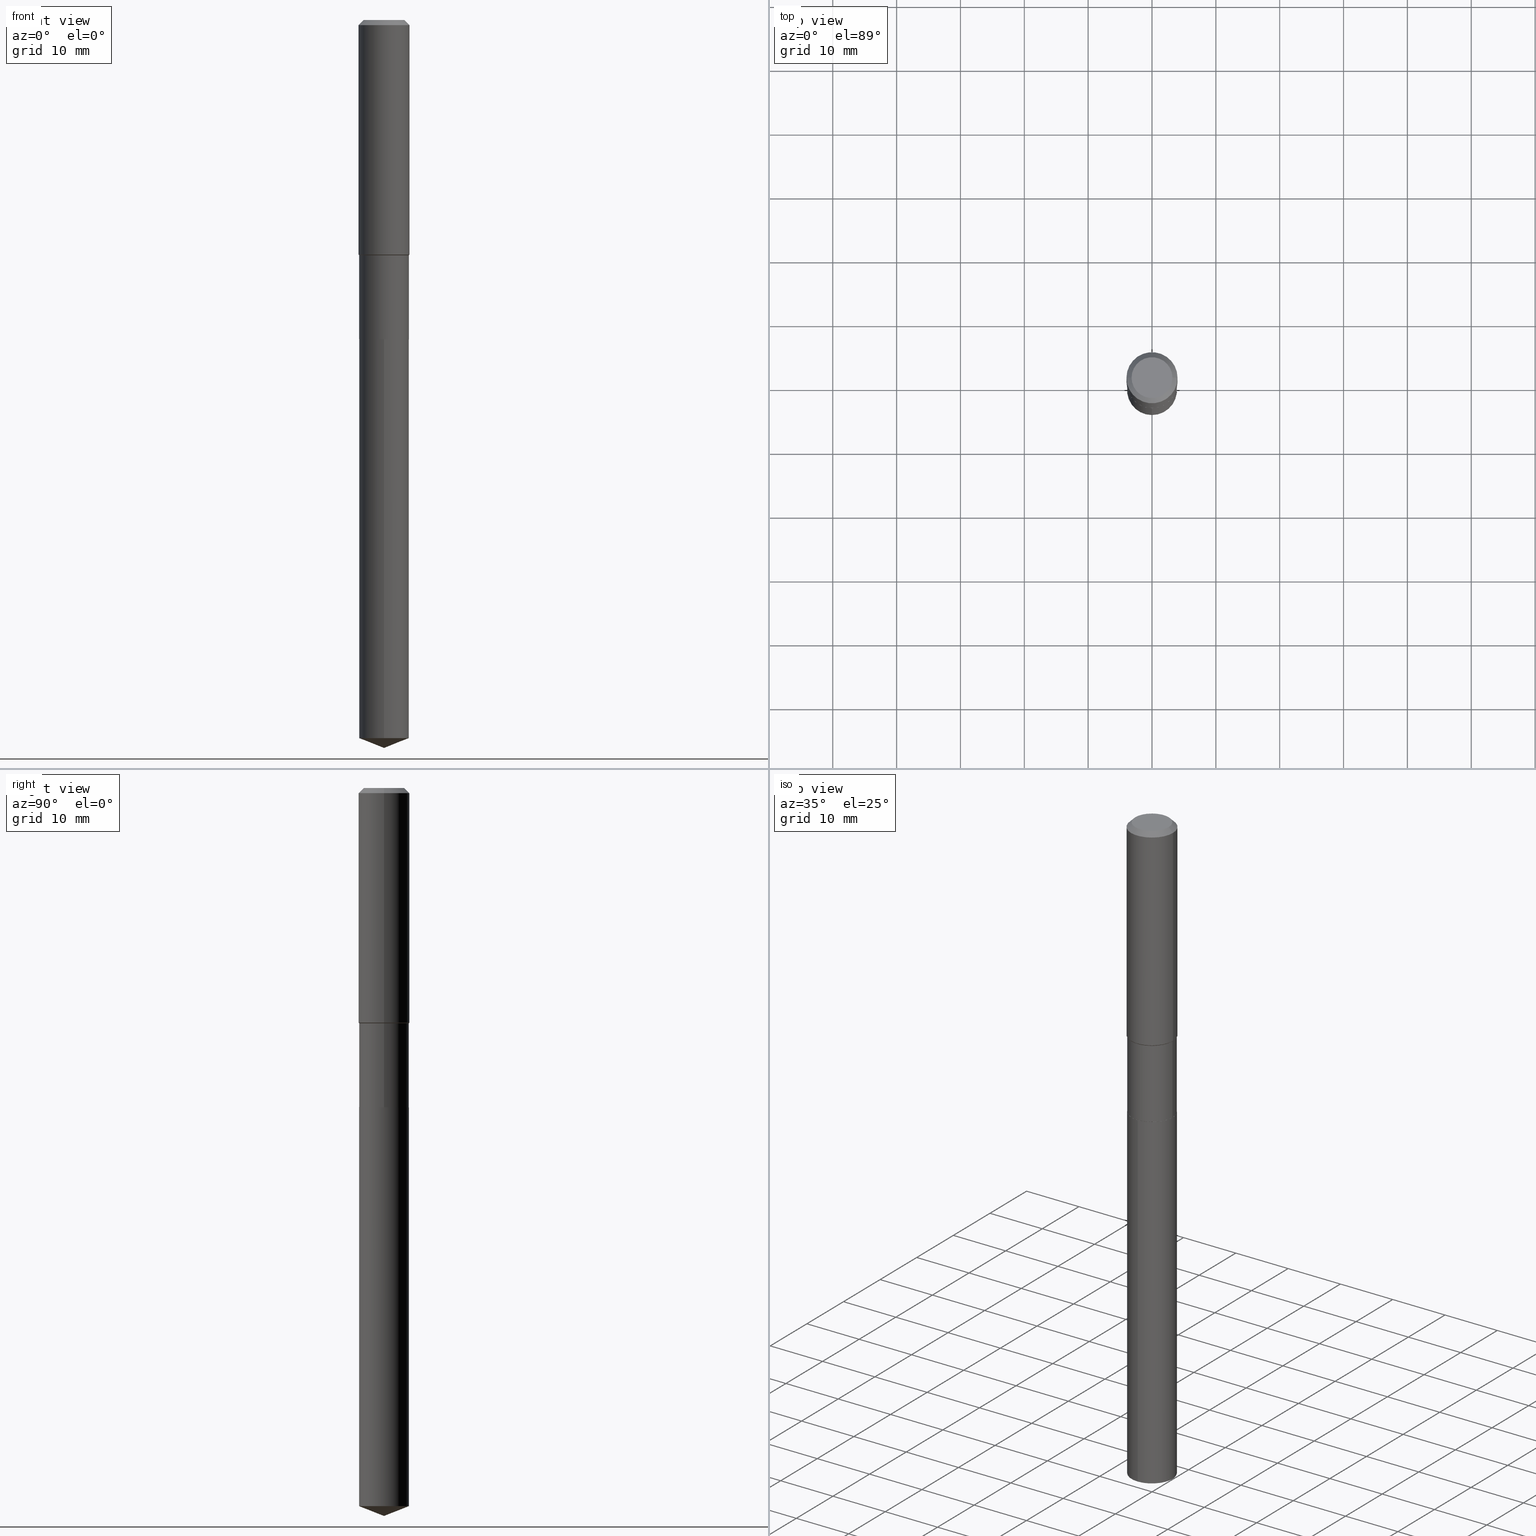
[diagram: canonical four-view strip — front | top / right | iso, engineering-drawing reading convention]
A machine part, canonical four-view strip (front | top / right | iso — engineering-drawing reading convention). The complete STEP part file that produces these views, byte-faithful:
ISO-10303-21;
HEADER;
FILE_DESCRIPTION (( 'STEP AP203' ),
    '1' );
FILE_NAME ('66654.STEP',
    '2024-04-25T02:57:42',
    ( '' ),
    ( '' ),
    'SwSTEP 2.0',
    'SolidWorks 2023',
    '' );
FILE_SCHEMA (( 'CONFIG_CONTROL_DESIGN' ));
ENDSEC;

DATA;
#1 = ADVANCED_FACE ( 'NONE', ( #355 ), #249, .F. ) ;
#2 = VERTEX_POINT ( 'NONE', #60 ) ;
#3 = DIRECTION ( 'NONE',  ( -2.445397477310179660E-29, 3.491583485851871163E-15, 1.000000000000000000 ) ) ;
#4 = VERTEX_POINT ( 'NONE', #211 ) ;
#5 = CARTESIAN_POINT ( 'NONE',  ( 7.703226739483226971E-31, -1.099816621735597538E-16, -0.03150000000000019451 ) ) ;
#6 = VECTOR ( 'NONE', #405, 39.37007874015748143 ) ;
#7 = PRODUCT_DEFINITION_FORMATION_WITH_SPECIFIED_SOURCE ( 'ANY', '', #437, .NOT_KNOWN. ) ;
#8 = ADVANCED_FACE ( 'NONE', ( #396 ), #429, .T. ) ;
#9 = LINE ( 'NONE', #450, #284 ) ;
#10 = CALENDAR_DATE ( 2024, 24, 4 ) ;
#11 = PLANE ( 'NONE',  #433 ) ;
#12 = CLOSED_SHELL ( 'NONE', ( #179, #321, #189, #441, #218 ) ) ;
#13 = LOCAL_TIME ( 22, 57, 42.00000000000000000, #131 ) ;
#14 = COORDINATED_UNIVERSAL_TIME_OFFSET ( 5, 0, .BEHIND. ) ;
#15 = LINE ( 'NONE', #238, #344 ) ;
#16 = ADVANCED_FACE ( 'NONE', ( #118 ), #275, .T. ) ;
#17 = SECURITY_CLASSIFICATION_LEVEL ( 'unclassified' ) ;
#18 = FACE_OUTER_BOUND ( 'NONE', #40, .T. ) ;
#19 =( NAMED_UNIT ( * ) SI_UNIT ( $, .STERADIAN. ) SOLID_ANGLE_UNIT ( ) );
#20 = CARTESIAN_POINT ( 'NONE',  ( 3.545929768968448850E-29, -5.062647941322561509E-15, -1.450000000000000178 ) ) ;
#21 = ORIENTED_EDGE ( 'NONE', *, *, #459, .T. ) ;
#22 = VECTOR ( 'NONE', #63, 39.37007874015748143 ) ;
#23 = EDGE_CURVE ( 'NONE', #257, #210, #463, .T. ) ;
#24 = FACE_OUTER_BOUND ( 'NONE', #255, .T. ) ;
#25 = DIRECTION ( 'NONE',  ( -1.000000000000000000, 6.982962677686265922E-15, 0.000000000000000000 ) ) ;
#26 = ORIENTED_EDGE ( 'NONE', *, *, #386, .T. ) ;
#27 = CARTESIAN_POINT ( 'NONE',  ( 7.703226739483226971E-31, -1.099816621735597538E-16, -0.03150000000000019451 ) ) ;
#28 = VECTOR ( 'NONE', #201, 39.37007874015748143 ) ;
#29 = VECTOR ( 'NONE', #490, 39.37007874015748143 ) ;
#30 = DIRECTION ( 'NONE',  ( -2.445468806185136597E-29, 3.491481338843145583E-15, 1.000000000000000000 ) ) ;
#31 = ADVANCED_FACE ( 'NONE', ( #128 ), #436, .T. ) ;
#32 = ORIENTED_EDGE ( 'NONE', *, *, #167, .T. ) ;
#33 = CARTESIAN_POINT ( 'NONE',  ( 1.097543295766354916E-28, -1.567092500120036717E-14, -4.488199999999999967 ) ) ;
#34 = ORIENTED_EDGE ( 'NONE', *, *, #59, .F. ) ;
#35 = CARTESIAN_POINT ( 'NONE',  ( 7.703226739483226971E-31, -1.099816621735597538E-16, -0.03150000000000019451 ) ) ;
#36 = ORIENTED_EDGE ( 'NONE', *, *, #250, .T. ) ;
#37 = ADVANCED_FACE ( 'NONE', ( #24 ), #352, .T. ) ;
#38 = DIRECTION ( 'NONE',  ( 1.000000000000000000, -6.982962677686265922E-15, 0.000000000000000000 ) ) ;
#39 = CIRCLE ( 'NONE', #345, 0.1535499999999999921 ) ;
#40 = EDGE_LOOP ( 'NONE', ( #142, #178 ) ) ;
#41 = LINE ( 'NONE', #415, #29 ) ;
#42 = ORIENTED_EDGE ( 'NONE', *, *, #266, .T. ) ;
#43 =( LENGTH_UNIT ( ) NAMED_UNIT ( * ) SI_UNIT ( $, .METRE. ) );
#44 = EDGE_CURVE ( 'NONE', #263, #480, #161, .T. ) ;
#45 = DIRECTION ( 'NONE',  ( -2.445468806185136597E-29, 3.491481338843145583E-15, 1.000000000000000000 ) ) ;
#46 = CIRCLE ( 'NONE', #241, 0.1575000000000001676 ) ;
#47 = CONICAL_SURFACE ( 'NONE', #322, 0.1575000000000000011, 0.7853981633974450594 ) ;
#48 = DATE_AND_TIME ( #460, #195 ) ;
#49 = DIRECTION ( 'NONE',  ( 0.000000000000000000, 0.000000000000000000, 1.000000000000000000 ) ) ;
#50 = DIRECTION ( 'NONE',  ( 1.000000000000000000, -6.982962677686266711E-15, 4.876176775795935793E-29 ) ) ;
#51 = DIRECTION ( 'NONE',  ( 1.000000000000000000, 0.000000000000000000, 0.000000000000000000 ) ) ;
#52 = APPROVAL ( #200, 'UNSPECIFIED' ) ;
#53 = FACE_OUTER_BOUND ( 'NONE', #112, .T. ) ;
#54 = CONICAL_SURFACE ( 'NONE', #154, 99.94676754583970535, 1.195550537616118625 ) ;
#55 = CYLINDRICAL_SURFACE ( 'NONE', #234, 0.1535499999999999643 ) ;
#56 = EDGE_LOOP ( 'NONE', ( #334, #268, #21, #187 ) ) ;
#57 = APPROVAL_STATUS ( 'not_yet_approved' ) ;
#58 = DIRECTION ( 'NONE',  ( -2.445468806185136597E-29, 3.491481338843145583E-15, 1.000000000000000000 ) ) ;
#59 = EDGE_CURVE ( 'NONE', #289, #373, #15, .T. ) ;
#60 = CARTESIAN_POINT ( 'NONE',  ( -0.1530499999999999916, -5.782846131257786245E-15, -1.968499999999999694 ) ) ;
#61 = ORIENTED_EDGE ( 'NONE', *, *, #122, .F. ) ;
#62 = DIRECTION ( 'NONE',  ( -2.445397477310179660E-29, 3.491583485851871163E-15, 1.000000000000000000 ) ) ;
#63 = DIRECTION ( 'NONE',  ( 6.611014441532064222E-15, 0.9304175679820269051, 0.3665012267242913624 ) ) ;
#64 = ORIENTED_EDGE ( 'NONE', *, *, #173, .T. ) ;
#65 = PLANE ( 'NONE',  #399 ) ;
#66 = APPROVAL ( #208, 'UNSPECIFIED' ) ;
#67 = ORIENTED_EDGE ( 'NONE', *, *, #350, .T. ) ;
#68 = CIRCLE ( 'NONE', #116, 0.1535499999999999921 ) ;
#69 = LINE ( 'NONE', #481, #22 ) ;
#70 = ORIENTED_EDGE ( 'NONE', *, *, #401, .F. ) ;
#71 = CARTESIAN_POINT ( 'NONE',  ( 4.813905344975440714E-29, -6.872981015512730918E-15, -1.968499999999999694 ) ) ;
#72 = ORIENTED_EDGE ( 'NONE', *, *, #259, .F. ) ;
#73 = ADVANCED_FACE ( 'NONE', ( #53 ), #407, .T. ) ;
#74 = DIRECTION ( 'NONE',  ( -2.445468806185136597E-29, 3.491481338843145583E-15, 1.000000000000000000 ) ) ;
#75 = ORIENTED_EDGE ( 'NONE', *, *, #315, .F. ) ;
#76 = AXIS2_PLACEMENT_3D ( 'NONE', #295, #30, #262 ) ;
#77 = DIRECTION ( 'NONE',  ( -2.445397477310179380E-29, 3.491583485851871163E-15, 1.000000000000000000 ) ) ;
#78 = ORIENTED_EDGE ( 'NONE', *, *, #475, .T. ) ;
#79 = DIRECTION ( 'NONE',  ( 1.000000000000000000, -6.982962677686267499E-15, 0.000000000000000000 ) ) ;
#80 = CARTESIAN_POINT ( 'NONE',  ( 0.1575000000000000844, -1.099816621735587677E-15, 7.679978421878603638E-30 ) ) ;
#81 = LINE ( 'NONE', #80, #418 ) ;
#82 = CIRCLE ( 'NONE', #276, 0.1575000000000000011 ) ;
#83 = SECURITY_CLASSIFICATION ( '', '', #17 ) ;
#84 = PERSON_AND_ORGANIZATION_ROLE ( 'creator' ) ;
#85 = DIRECTION ( 'NONE',  ( -2.445468806185136877E-29, 3.491481338843145188E-15, 1.000000000000000000 ) ) ;
#86 = ADVANCED_FACE ( 'NONE', ( #387 ), #55, .T. ) ;
#87 = DIRECTION ( 'NONE',  ( 1.000000000000000000, -6.982962677686265922E-15, 4.876176775795935793E-29 ) ) ;
#88 = CARTESIAN_POINT ( 'NONE',  ( 0.000000000000000000, 0.000000000000000000, 0.000000000000000000 ) ) ;
#89 = CLOSED_SHELL ( 'NONE', ( #301, #213, #127, #16, #31, #86, #73, #8, #37, #143, #1, #424 ) ) ;
#90 = DIRECTION ( 'NONE',  ( -6.982962677686266711E-15, -1.000000000000000000, 3.558252026915354491E-15 ) ) ;
#91 = EDGE_CURVE ( 'NONE', #263, #247, #46, .T. ) ;
#92 =( NAMED_UNIT ( * ) PLANE_ANGLE_UNIT ( ) SI_UNIT ( $, .RADIAN. ) );
#93 = CARTESIAN_POINT ( 'NONE',  ( 0.000000000000000000, 0.000000000000000000, 0.000000000000000000 ) ) ;
#94 = ORIENTED_EDGE ( 'NONE', *, *, #335, .T. ) ;
#95 = CARTESIAN_POINT ( 'NONE',  ( 0.1575000000000001676, -6.148673211769718717E-15, -1.446050000000000058 ) ) ;
#96 = AXIS2_PLACEMENT_3D ( 'NONE', #456, #397, #358 ) ;
#97 = ORGANIZATION ( 'UNSPECIFIED', 'UNSPECIFIED', '' ) ;
#98 =( GEOMETRIC_REPRESENTATION_CONTEXT ( 3 ) GLOBAL_UNCERTAINTY_ASSIGNED_CONTEXT ( ( #191 ) ) GLOBAL_UNIT_ASSIGNED_CONTEXT ( ( #272, #92, #19 ) ) REPRESENTATION_CONTEXT ( 'NONE', 'WORKASPACE' ) );
#99 = DIRECTION ( 'NONE',  ( -2.445468806185136597E-29, 3.491481338843145583E-15, 1.000000000000000000 ) ) ;
#100 = ORIENTED_EDGE ( 'NONE', *, *, #122, .T. ) ;
#101 = CC_DESIGN_PERSON_AND_ORGANIZATION_ASSIGNMENT ( #349, #438, ( #109 ) ) ;
#102 = DIRECTION ( 'NONE',  ( 1.000000000000000000, -6.982962677686265922E-15, 0.000000000000000000 ) ) ;
#103 = ORIENTED_EDGE ( 'NONE', *, *, #288, .F. ) ;
#104 = DIRECTION ( 'NONE',  ( 1.000000000000000000, -6.982962677686265922E-15, 4.876281427513067258E-29 ) ) ;
#105 = VERTEX_POINT ( 'NONE', #279 ) ;
#106 = VECTOR ( 'NONE', #85, 39.37007874015748143 ) ;
#107 = AXIS2_PLACEMENT_3D ( 'NONE', #274, #232, #229 ) ;
#108 = CARTESIAN_POINT ( 'NONE',  ( 1.091038370759742445E-15, 0.1535499999999931364, -1.968500000000000583 ) ) ;
#109 = PRODUCT_DEFINITION ( 'UNKNOWN', '', #7, #199 ) ;
#110 = ORIENTED_EDGE ( 'NONE', *, *, #59, .T. ) ;
#111 = DIRECTION ( 'NONE',  ( -2.445397477310179660E-29, 3.491583485851871163E-15, 1.000000000000000000 ) ) ;
#112 = EDGE_LOOP ( 'NONE', ( #61, #26, #94, #342 ) ) ;
#113 = CARTESIAN_POINT ( 'NONE',  ( 4.813905344975440714E-29, -6.872981015512730918E-15, -1.968499999999999694 ) ) ;
#114 = EDGE_LOOP ( 'NONE', ( #78, #67, #103, #139 ) ) ;
#115 = AXIS2_PLACEMENT_3D ( 'NONE', #171, #314, #87 ) ;
#116 = AXIS2_PLACEMENT_3D ( 'NONE', #341, #111, #300 ) ;
#117 = DIRECTION ( 'NONE',  ( -2.445468806185136597E-29, 3.491481338843145583E-15, 1.000000000000000000 ) ) ;
#118 = FACE_OUTER_BOUND ( 'NONE', #376, .T. ) ;
#119 = FACE_OUTER_BOUND ( 'NONE', #56, .T. ) ;
#120 = CALENDAR_DATE ( 2024, 24, 4 ) ;
#121 = CIRCLE ( 'NONE', #252, 0.1535499999999999365 ) ;
#122 = EDGE_CURVE ( 'NONE', #145, #263, #356, .T. ) ;
#123 = DIRECTION ( 'NONE',  ( -2.445468806185136597E-29, 3.491481338843145583E-15, 1.000000000000000000 ) ) ;
#124 = DIRECTION ( 'NONE',  ( -2.445468806185136597E-29, 3.491481338843145583E-15, 1.000000000000000000 ) ) ;
#125 = PRODUCT_DEFINITION_SHAPE ( 'NONE', 'NONE',  #109 ) ;
#126 = COORDINATED_UNIVERSAL_TIME_OFFSET ( 5, 0, .BEHIND. ) ;
#127 = ADVANCED_FACE ( 'NONE', ( #132 ), #287, .T. ) ;
#128 = FACE_OUTER_BOUND ( 'NONE', #489, .T. ) ;
#129 = CONICAL_SURFACE ( 'NONE', #307, 0.1530499999999999916, 0.7853981633978239785 ) ;
#130 = ORIENTED_EDGE ( 'NONE', *, *, #374, .F. ) ;
#131 = COORDINATED_UNIVERSAL_TIME_OFFSET ( 5, 0, .BEHIND. ) ;
#132 = FACE_OUTER_BOUND ( 'NONE', #302, .T. ) ;
#133 = ORIENTED_EDGE ( 'NONE', *, *, #346, .F. ) ;
#134 = DIRECTION ( 'NONE',  ( -6.982962677686266711E-15, -1.000000000000000000, 3.558252026915354491E-15 ) ) ;
#135 = CARTESIAN_POINT ( 'NONE',  ( 4.813905344975440714E-29, -6.872981015512730918E-15, -1.968499999999999694 ) ) ;
#136 = AXIS2_PLACEMENT_3D ( 'NONE', #393, #439, #246 ) ;
#137 = AXIS2_PLACEMENT_3D ( 'NONE', #221, #375, #372 ) ;
#138 = CC_DESIGN_PERSON_AND_ORGANIZATION_ASSIGNMENT ( #281, #430, ( #437 ) ) ;
#139 = ORIENTED_EDGE ( 'NONE', *, *, #459, .F. ) ;
#140 = DIRECTION ( 'NONE',  ( -0.7071067811868130271, 7.493145998871311837E-15, 0.7071067811862817853 ) ) ;
#141 = CARTESIAN_POINT ( 'NONE',  ( -0.1575000000000001676, -3.929751781211971266E-15, -1.446050000000000058 ) ) ;
#142 = ORIENTED_EDGE ( 'NONE', *, *, #346, .T. ) ;
#143 = ADVANCED_FACE ( 'NONE', ( #18 ), #11, .F. ) ;
#144 = CARTESIAN_POINT ( 'NONE',  ( -1.072233919158677828E-15, -0.1535500000000068754, -1.968499999999999472 ) ) ;
#145 = VERTEX_POINT ( 'NONE', #317 ) ;
#146 = AXIS2_PLACEMENT_3D ( 'NONE', #258, #177, #251 ) ;
#147 = DIRECTION ( 'NONE',  ( 1.000000000000000000, -6.982962677686265922E-15, 0.000000000000000000 ) ) ;
#148 = ORIENTED_EDGE ( 'NONE', *, *, #228, .T. ) ;
#149 = CARTESIAN_POINT ( 'NONE',  ( 0.1530499999999999916, -7.941723453332613269E-15, -1.968499999999999694 ) ) ;
#150 = EDGE_LOOP ( 'NONE', ( #261, #449 ) ) ;
#151 = CARTESIAN_POINT ( 'NONE',  ( -0.1575000000000000011, -1.460314317281686560E-15, -0.03150000000000019451 ) ) ;
#152 = ORIENTED_EDGE ( 'NONE', *, *, #91, .T. ) ;
#153 = EDGE_CURVE ( 'NONE', #296, #174, #320, .T. ) ;
#154 = AXIS2_PLACEMENT_3D ( 'NONE', #364, #62, #408 ) ;
#155 = CARTESIAN_POINT ( 'NONE',  ( 3.545929768968448850E-29, -5.062647941322561509E-15, -1.450000000000000178 ) ) ;
#156 = CARTESIAN_POINT ( 'NONE',  ( -0.1260000000000000009, 9.348441284752484904E-16, 3.860086710906114178E-18 ) ) ;
#157 = APPROVAL_DATE_TIME ( #168, #66 ) ;
#158 = EDGE_CURVE ( 'NONE', #419, #480, #175, .T. ) ;
#159 = APPROVAL_DATE_TIME ( #388, #280 ) ;
#160 = LOCAL_TIME ( 22, 57, 42.00000000000000000, #205 ) ;
#161 = LINE ( 'NONE', #427, #106 ) ;
#162 = APPROVAL_PERSON_ORGANIZATION ( #278, #280, #354 ) ;
#163 = DATE_AND_TIME ( #120, #160 ) ;
#164 = DIRECTION ( 'NONE',  ( 2.438088387897960049E-29, -3.491481338843145188E-15, -1.000000000000000000 ) ) ;
#165 = CALENDAR_DATE ( 2024, 24, 4 ) ;
#166 = DIRECTION ( 'NONE',  ( -1.000000000000000000, 6.982962677686265922E-15, -4.876176775795935793E-29 ) ) ;
#167 = EDGE_CURVE ( 'NONE', #4, #257, #360, .T. ) ;
#168 = DATE_AND_TIME ( #357, #410 ) ;
#169 = DIRECTION ( 'NONE',  ( -2.445468806185136597E-29, 3.491481338843145583E-15, 1.000000000000000000 ) ) ;
#170 = VECTOR ( 'NONE', #445, 39.37007874015748143 ) ;
#171 = CARTESIAN_POINT ( 'NONE',  ( 2.360336001921411323E-29, -1.038663196326059026E-14, -1.968499999999999472 ) ) ;
#172 = CARTESIAN_POINT ( 'NONE',  ( 4.813905344975440714E-29, -6.872981015512730918E-15, -1.968499999999999694 ) ) ;
#173 = EDGE_CURVE ( 'NONE', #105, #2, #423, .T. ) ;
#174 = VERTEX_POINT ( 'NONE', #144 ) ;
#175 = LINE ( 'NONE', #214, #170 ) ;
#176 = AXIS2_PLACEMENT_3D ( 'NONE', #204, #271, #323 ) ;
#177 = DIRECTION ( 'NONE',  ( -2.445468806185136597E-29, 3.491481338843145583E-15, 1.000000000000000000 ) ) ;
#178 = ORIENTED_EDGE ( 'NONE', *, *, #273, .T. ) ;
#179 = ADVANCED_FACE ( 'NONE', ( #474 ), #256, .T. ) ;
#180 = LINE ( 'NONE', #324, #6 ) ;
#181 = ORIENTED_EDGE ( 'NONE', *, *, #273, .F. ) ;
#182 = DIRECTION ( 'NONE',  ( 1.000000000000000000, -6.982962677686265133E-15, 0.000000000000000000 ) ) ;
#183 = EDGE_LOOP ( 'NONE', ( #338, #406 ) ) ;
#184 = VECTOR ( 'NONE', #209, 39.37007874015748143 ) ;
#185 = AXIS2_PLACEMENT_3D ( 'NONE', #71, #45, #236 ) ;
#186 = CARTESIAN_POINT ( 'NONE',  ( 4.813905344975440714E-29, -6.872981015512730918E-15, -1.968499999999999694 ) ) ;
#187 = ORIENTED_EDGE ( 'NONE', *, *, #153, .F. ) ;
#188 = DIRECTION ( 'NONE',  ( 1.000000000000000000, -6.982962677686265922E-15, 4.876281427513067258E-29 ) ) ;
#189 = ADVANCED_FACE ( 'NONE', ( #325 ), #54, .T. ) ;
#190 = ORIENTED_EDGE ( 'NONE', *, *, #158, .F. ) ;
#191 = UNCERTAINTY_MEASURE_WITH_UNIT (LENGTH_MEASURE( 1.000000000000000082E-05 ), #272, 'distance_accuracy_value', 'NONE');
#192 = AXIS2_PLACEMENT_3D ( 'NONE', #362, #58, #285 ) ;
#193 = VECTOR ( 'NONE', #448, 39.37007874015748143 ) ;
#194 = CARTESIAN_POINT ( 'NONE',  ( -8.529991786413033970E-28, 1.217931928410080037E-13, 34.88187874015748235 ) ) ;
#195 = LOCAL_TIME ( 22, 57, 42.00000000000000000, #126 ) ;
#196 = EDGE_CURVE ( 'NONE', #222, #480, #442, .T. ) ;
#197 = APPLICATION_CONTEXT ( 'configuration controlled 3d designs of mechanical parts and assemblies' ) ;
#198 = PERSON_AND_ORGANIZATION ( #361, #97 ) ;
#199 = DESIGN_CONTEXT ( 'detailed design', #197, 'design' ) ;
#200 = APPROVAL_STATUS ( 'not_yet_approved' ) ;
#201 = DIRECTION ( 'NONE',  ( -0.7071067811865597852, 7.493145998870398336E-15, 0.7071067811865352493 ) ) ;
#202 = DATE_TIME_ROLE ( 'creation_date' ) ;
#203 = CIRCLE ( 'NONE', #461, 0.1260000000000000009 ) ;
#204 = CARTESIAN_POINT ( 'NONE',  ( 7.703226739483226971E-31, -1.099816621735597538E-16, -0.03150000000000019451 ) ) ;
#205 = COORDINATED_UNIVERSAL_TIME_OFFSET ( 5, 0, .BEHIND. ) ;
#206 = CARTESIAN_POINT ( 'NONE',  ( 0.1535499999999999643, -1.072233919158725949E-15, 7.487369439234657779E-30 ) ) ;
#207 = ORIENTED_EDGE ( 'NONE', *, *, #266, .F. ) ;
#208 = APPROVAL_STATUS ( 'not_yet_approved' ) ;
#209 = DIRECTION ( 'NONE',  ( -2.445468806185136877E-29, 3.491481338843145188E-15, 1.000000000000000000 ) ) ;
#210 = VERTEX_POINT ( 'NONE', #400 ) ;
#211 = CARTESIAN_POINT ( 'NONE',  ( -0.1535499999999999921, -4.875903237323301486E-15, -1.968000000000000194 ) ) ;
#212 = ORIENTED_EDGE ( 'NONE', *, *, #294, .F. ) ;
#213 = ADVANCED_FACE ( 'NONE', ( #223 ), #47, .T. ) ;
#214 = CARTESIAN_POINT ( 'NONE',  ( -0.1575000000000000011, 9.898349595620272334E-16, -0.03150000000000019451 ) ) ;
#215 = CARTESIAN_POINT ( 'NONE',  ( 0.1535499999999999921, -7.943469194002037139E-15, -1.968000000000000194 ) ) ;
#216 = EDGE_LOOP ( 'NONE', ( #72, #148, #340, #451 ) ) ;
#217 = DIRECTION ( 'NONE',  ( 6.982962677686265922E-15, 1.000000000000000000, -3.491583485851871163E-15 ) ) ;
#218 = ADVANCED_FACE ( 'NONE', ( #479 ), #65, .F. ) ;
#219 = AXIS2_PLACEMENT_3D ( 'NONE', #331, #99, #254 ) ;
#220 = ORIENTED_EDGE ( 'NONE', *, *, #411, .T. ) ;
#221 = CARTESIAN_POINT ( 'NONE',  ( 4.813905344975441835E-29, -6.872981015512731707E-15, -1.968500000000000139 ) ) ;
#222 = VERTEX_POINT ( 'NONE', #440 ) ;
#223 = FACE_OUTER_BOUND ( 'NONE', #286, .T. ) ;
#224 = ORIENTED_EDGE ( 'NONE', *, *, #386, .F. ) ;
#225 = DIRECTION ( 'NONE',  ( 1.000000000000000000, -6.982962677686269077E-15, 0.000000000000000000 ) ) ;
#226 = ORIENTED_EDGE ( 'NONE', *, *, #23, .T. ) ;
#227 = CIRCLE ( 'NONE', #76, 0.1535499999999999365 ) ;
#228 = EDGE_CURVE ( 'NONE', #2, #105, #409, .T. ) ;
#229 = DIRECTION ( 'NONE',  ( -6.982962677686266711E-15, -1.000000000000000000, 3.558252026915354491E-15 ) ) ;
#230 = ORIENTED_EDGE ( 'NONE', *, *, #233, .T. ) ;
#231 = CARTESIAN_POINT ( 'NONE',  ( -1.072233919158677828E-15, -0.1535500000000068754, -1.968499999999999250 ) ) ;
#232 = DIRECTION ( 'NONE',  ( -2.445397477310179660E-29, 3.491583485851871163E-15, 1.000000000000000000 ) ) ;
#233 = EDGE_CURVE ( 'NONE', #4, #145, #180, .T. ) ;
#234 = AXIS2_PLACEMENT_3D ( 'NONE', #93, #123, #50 ) ;
#235 = AXIS2_PLACEMENT_3D ( 'NONE', #172, #327, #102 ) ;
#236 = DIRECTION ( 'NONE',  ( 1.000000000000000000, -6.982962677686265922E-15, 0.000000000000000000 ) ) ;
#237 = DATE_AND_TIME ( #165, #13 ) ;
#238 = CARTESIAN_POINT ( 'NONE',  ( 1.059404549109931292E-28, -1.621709356054687186E-14, -4.488199999999999079 ) ) ;
#239 = APPLICATION_PROTOCOL_DEFINITION ( 'international standard', 'config_control_design', 1994, #318 ) ;
#240 = CARTESIAN_POINT ( 'NONE',  ( -4.719860820353100843E-47, 6.738710358733633822E-33, 1.930043355456229866E-18 ) ) ;
#241 = AXIS2_PLACEMENT_3D ( 'NONE', #282, #169, #389 ) ;
#242 = CIRCLE ( 'NONE', #337, 0.1260000000000000009 ) ;
#243 = CC_DESIGN_DATE_AND_TIME_ASSIGNMENT ( #237, #395, ( #83 ) ) ;
#244 = DIRECTION ( 'NONE',  ( 1.000000000000000000, -6.982962677686267499E-15, 4.876176775795936353E-29 ) ) ;
#245 = COORDINATED_UNIVERSAL_TIME_OFFSET ( 5, 0, .BEHIND. ) ;
#246 = DIRECTION ( 'NONE',  ( 1.000000000000000000, -6.982962677686267499E-15, 4.876176775795936353E-29 ) ) ;
#247 = VERTEX_POINT ( 'NONE', #95 ) ;
#248 = APPROVAL_ROLE ( '' ) ;
#249 = PLANE ( 'NONE',  #115 ) ;
#250 = EDGE_CURVE ( 'NONE', #289, #332, #69, .T. ) ;
#251 = DIRECTION ( 'NONE',  ( 1.000000000000000000, -6.982962677686269077E-15, 0.000000000000000000 ) ) ;
#252 = AXIS2_PLACEMENT_3D ( 'NONE', #155, #74, #182 ) ;
#253 = MANIFOLD_SOLID_BREP ( 'Body-Move/Copy2[1]', #12 ) ;
#254 = DIRECTION ( 'NONE',  ( 1.000000000000000000, -6.982962677686265922E-15, 0.000000000000000000 ) ) ;
#255 = EDGE_LOOP ( 'NONE', ( #212, #133, #473, #367 ) ) ;
#256 = CYLINDRICAL_SURFACE ( 'NONE', #455, 0.1535499999999999921 ) ;
#257 = VERTEX_POINT ( 'NONE', #215 ) ;
#258 = CARTESIAN_POINT ( 'NONE',  ( 4.812682610572349594E-29, -6.871235274843310993E-15, -1.968000000000000194 ) ) ;
#259 = EDGE_CURVE ( 'NONE', #2, #4, #369, .T. ) ;
#260 = AXIS2_PLACEMENT_3D ( 'NONE', #186, #3, #417 ) ;
#261 = ORIENTED_EDGE ( 'NONE', *, *, #173, .F. ) ;
#262 = DIRECTION ( 'NONE',  ( 1.000000000000000000, -6.982962677686265133E-15, 0.000000000000000000 ) ) ;
#263 = VERTEX_POINT ( 'NONE', #141 ) ;
#264 = DIRECTION ( 'NONE',  ( 0.7071067811868130271, -2.468850131085038979E-15, 0.7071067811862817853 ) ) ;
#265 = ORIENTED_EDGE ( 'NONE', *, *, #435, .T. ) ;
#266 = EDGE_CURVE ( 'NONE', #210, #145, #227, .T. ) ;
#267 = CYLINDRICAL_SURFACE ( 'NONE', #260, 0.1535499999999999921 ) ;
#268 = ORIENTED_EDGE ( 'NONE', *, *, #366, .T. ) ;
#269 = VECTOR ( 'NONE', #140, 39.37007874015748854 ) ;
#270 = DIRECTION ( 'NONE',  ( -2.445468806185136597E-29, 3.491481338843145583E-15, 1.000000000000000000 ) ) ;
#271 = DIRECTION ( 'NONE',  ( 2.445468806185136597E-29, -3.491481338843145583E-15, -1.000000000000000000 ) ) ;
#272 =( CONVERSION_BASED_UNIT ( 'INCH', #383 ) LENGTH_UNIT ( ) NAMED_UNIT ( #432 ) );
#273 = EDGE_CURVE ( 'NONE', #382, #419, #242, .T. ) ;
#274 = CARTESIAN_POINT ( 'NONE',  ( 1.082766361577476650E-28, -1.545953565992347058E-14, -4.427715046469325344 ) ) ;
#275 = CONICAL_SURFACE ( 'NONE', #192, 0.1535499999999999365, 0.7853981633974657095 ) ;
#276 = AXIS2_PLACEMENT_3D ( 'NONE', #5, #270, #38 ) ;
#277 = CARTESIAN_POINT ( 'NONE',  ( 0.000000000000000000, 0.000000000000000000, 0.000000000000000000 ) ) ;
#278 = PERSON_AND_ORGANIZATION ( #361, #97 ) ;
#279 = CARTESIAN_POINT ( 'NONE',  ( 0.1530499999999999916, -7.941723453332613269E-15, -1.968499999999999694 ) ) ;
#280 = APPROVAL ( #57, 'UNSPECIFIED' ) ;
#281 = PERSON_AND_ORGANIZATION ( #361, #97 ) ;
#282 = CARTESIAN_POINT ( 'NONE',  ( 3.536270167184016952E-29, -5.048856590034130447E-15, -1.446050000000000058 ) ) ;
#283 = PERSON_AND_ORGANIZATION ( #361, #97 ) ;
#284 = VECTOR ( 'NONE', #381, 39.37007874015748143 ) ;
#285 = DIRECTION ( 'NONE',  ( 1.000000000000000000, -6.982962677686265133E-15, 0.000000000000000000 ) ) ;
#286 = EDGE_LOOP ( 'NONE', ( #181, #380, #359, #190 ) ) ;
#287 = CYLINDRICAL_SURFACE ( 'NONE', #368, 0.1575000000000000844 ) ;
#288 = EDGE_CURVE ( 'NONE', #174, #296, #298, .T. ) ;
#289 = VERTEX_POINT ( 'NONE', #33 ) ;
#290 = DIRECTION ( 'NONE',  ( 2.445468806185136597E-29, -3.491481338843145583E-15, -1.000000000000000000 ) ) ;
#291 = DIRECTION ( 'NONE',  ( 1.000000000000000000, -6.982962677686265922E-15, 0.000000000000000000 ) ) ;
#292 = CONICAL_SURFACE ( 'NONE', #379, 99.94676754583970535, 1.195550537616118625 ) ;
#293 = CARTESIAN_POINT ( 'NONE',  ( 2.368325482035557725E-29, -1.037519057300416887E-14, -1.968500000000000139 ) ) ;
#294 = EDGE_CURVE ( 'NONE', #382, #222, #333, .T. ) ;
#295 = CARTESIAN_POINT ( 'NONE',  ( 3.545929768968448850E-29, -5.062647941322561509E-15, -1.450000000000000178 ) ) ;
#296 = VERTEX_POINT ( 'NONE', #108 ) ;
#297 = CARTESIAN_POINT ( 'NONE',  ( -9.439721640706201686E-47, 1.347742071746726764E-32, 3.860086710912459732E-18 ) ) ;
#298 = CIRCLE ( 'NONE', #137, 0.1535499999999999921 ) ;
#299 = EDGE_LOOP ( 'NONE', ( #64, #371, #398, #75 ) ) ;
#300 = DIRECTION ( 'NONE',  ( -6.982962677686266711E-15, -1.000000000000000000, 3.558252026915354491E-15 ) ) ;
#301 = ADVANCED_FACE ( 'NONE', ( #413 ), #425, .T. ) ;
#302 = EDGE_LOOP ( 'NONE', ( #265, #394, #447, #70 ) ) ;
#303 = CARTESIAN_POINT ( 'NONE',  ( 0.1260000000000000009, -1.027466422270894443E-15, 3.860086710919128072E-18 ) ) ;
#304 = EDGE_LOOP ( 'NONE', ( #403, #152, #444, #130 ) ) ;
#305 = CARTESIAN_POINT ( 'NONE',  ( 4.812682610572349594E-29, -6.871235274843310993E-15, -1.968000000000000194 ) ) ;
#306 = EDGE_LOOP ( 'NONE', ( #485, #110, #453 ) ) ;
#307 = AXIS2_PLACEMENT_3D ( 'NONE', #113, #339, #147 ) ;
#308 = CC_DESIGN_PERSON_AND_ORGANIZATION_ASSIGNMENT ( #283, #316, ( #83 ) ) ;
#309 = LINE ( 'NONE', #149, #328 ) ;
#310 = DIRECTION ( 'NONE',  ( -6.982962677686266711E-15, -1.000000000000000000, 3.498627837350013689E-15 ) ) ;
#311 = SHAPE_DEFINITION_REPRESENTATION ( #125, #483 ) ;
#312 = CIRCLE ( 'NONE', #478, 0.1575000000000001676 ) ;
#313 = PERSON_AND_ORGANIZATION_ROLE ( 'design_supplier' ) ;
#314 = DIRECTION ( 'NONE',  ( -2.438088387897960049E-29, 3.491481338843145188E-15, 1.000000000000000000 ) ) ;
#315 = EDGE_CURVE ( 'NONE', #105, #257, #309, .T. ) ;
#316 = PERSON_AND_ORGANIZATION_ROLE ( 'classification_officer' ) ;
#317 = CARTESIAN_POINT ( 'NONE',  ( -0.1535499999999999365, -4.875903237323303063E-15, -1.450000000000000178 ) ) ;
#318 = APPLICATION_CONTEXT ( 'configuration controlled 3d designs of mechanical parts and assemblies' ) ;
#319 = CARTESIAN_POINT ( 'NONE',  ( 4.813905344975441835E-29, -6.872981015512731707E-15, -1.968500000000000139 ) ) ;
#320 = CIRCLE ( 'NONE', #384, 0.1535499999999999921 ) ;
#321 = ADVANCED_FACE ( 'NONE', ( #422 ), #292, .T. ) ;
#322 = AXIS2_PLACEMENT_3D ( 'NONE', #35, #290, #25 ) ;
#323 = DIRECTION ( 'NONE',  ( -1.000000000000000000, 6.982962677686265922E-15, 0.000000000000000000 ) ) ;
#324 = CARTESIAN_POINT ( 'NONE',  ( -0.1535499999999999643, 1.091038370759633582E-15, -7.553024831086406471E-30 ) ) ;
#325 = FACE_OUTER_BOUND ( 'NONE', #306, .T. ) ;
#326 = EDGE_LOOP ( 'NONE', ( #34, #36, #477 ) ) ;
#327 = DIRECTION ( 'NONE',  ( -2.445468806185136597E-29, 3.491481338843145583E-15, 1.000000000000000000 ) ) ;
#328 = VECTOR ( 'NONE', #264, 39.37007874015748854 ) ;
#329 = CC_DESIGN_APPROVAL ( #280, ( #7 ) ) ;
#330 = CC_DESIGN_PERSON_AND_ORGANIZATION_ASSIGNMENT ( #428, #313, ( #7 ) ) ;
#331 = CARTESIAN_POINT ( 'NONE',  ( 4.813905344975440714E-29, -6.872981015512730918E-15, -1.968499999999999694 ) ) ;
#332 = VERTEX_POINT ( 'NONE', #343 ) ;
#333 = LINE ( 'NONE', #484, #193 ) ;
#334 = ORIENTED_EDGE ( 'NONE', *, *, #350, .F. ) ;
#335 = EDGE_CURVE ( 'NONE', #210, #247, #41, .T. ) ;
#336 = DIRECTION ( 'NONE',  ( -2.445397477310179660E-29, 3.491583485851871163E-15, 1.000000000000000000 ) ) ;
#337 = AXIS2_PLACEMENT_3D ( 'NONE', #297, #446, #104 ) ;
#338 = ORIENTED_EDGE ( 'NONE', *, *, #288, .T. ) ;
#339 = DIRECTION ( 'NONE',  ( -2.445468806185136597E-29, 3.491481338843145583E-15, 1.000000000000000000 ) ) ;
#340 = ORIENTED_EDGE ( 'NONE', *, *, #315, .T. ) ;
#341 = CARTESIAN_POINT ( 'NONE',  ( 1.082766361577476650E-28, -1.545953565992347058E-14, -4.427715046469325344 ) ) ;
#342 = ORIENTED_EDGE ( 'NONE', *, *, #91, .F. ) ;
#343 = CARTESIAN_POINT ( 'NONE',  ( 1.091038370759742050E-15, 0.1535499999999845877, -4.427715046469326232 ) ) ;
#344 = VECTOR ( 'NONE', #464, 39.37007874015748854 ) ;
#345 = AXIS2_PLACEMENT_3D ( 'NONE', #305, #421, #225 ) ;
#346 = EDGE_CURVE ( 'NONE', #419, #382, #203, .T. ) ;
#347 = LOCAL_TIME ( 22, 57, 42.00000000000000000, #245 ) ;
#348 = DIRECTION ( 'NONE',  ( -2.445468806185136877E-29, 3.491481338843145188E-15, 1.000000000000000000 ) ) ;
#349 = PERSON_AND_ORGANIZATION ( #361, #97 ) ;
#350 = EDGE_CURVE ( 'NONE', #332, #296, #9, .T. ) ;
#351 = DIRECTION ( 'NONE',  ( -2.445468806185136597E-29, 3.491481338843145583E-15, 1.000000000000000000 ) ) ;
#352 = CONICAL_SURFACE ( 'NONE', #176, 0.1575000000000000011, 0.7853981633974450594 ) ;
#353 = CC_DESIGN_APPROVAL ( #66, ( #83 ) ) ;
#354 = APPROVAL_ROLE ( '' ) ;
#355 = FACE_OUTER_BOUND ( 'NONE', #150, .T. ) ;
#356 = LINE ( 'NONE', #431, #28 ) ;
#357 = CALENDAR_DATE ( 2024, 24, 4 ) ;
#358 = DIRECTION ( 'NONE',  ( 1.000000000000000000, -6.982962677686266711E-15, 4.876176775795935793E-29 ) ) ;
#359 = ORIENTED_EDGE ( 'NONE', *, *, #196, .T. ) ;
#360 = CIRCLE ( 'NONE', #146, 0.1535499999999999921 ) ;
#361 = PERSON ( 'UNSPECIFIED', 'UNSPECIFIED', 'UNSPECIFIED', ('UNSPECIFIED'), ('UNSPECIFIED'), ('UNSPECIFIED') ) ;
#362 = CARTESIAN_POINT ( 'NONE',  ( 3.545929768968448850E-29, -5.062647941322561509E-15, -1.450000000000000178 ) ) ;
#363 = CC_DESIGN_SECURITY_CLASSIFICATION ( #83, ( #7 ) ) ;
#364 = CARTESIAN_POINT ( 'NONE',  ( -8.529991786413033970E-28, 1.217931928410080037E-13, 34.88187874015748235 ) ) ;
#365 = CARTESIAN_POINT ( 'NONE',  ( -0.1530499999999999916, -5.785495358431897446E-15, -1.968499999999999694 ) ) ;
#366 = EDGE_CURVE ( 'NONE', #332, #373, #68, .T. ) ;
#367 = ORIENTED_EDGE ( 'NONE', *, *, #374, .T. ) ;
#368 = AXIS2_PLACEMENT_3D ( 'NONE', #88, #351, #244 ) ;
#369 = LINE ( 'NONE', #365, #269 ) ;
#370 = AXIS2_PLACEMENT_3D ( 'NONE', #27, #402, #291 ) ;
#371 = ORIENTED_EDGE ( 'NONE', *, *, #259, .T. ) ;
#372 = DIRECTION ( 'NONE',  ( -6.982962677686266711E-15, -1.000000000000000000, 3.558252026915354491E-15 ) ) ;
#373 = VERTEX_POINT ( 'NONE', #385 ) ;
#374 = EDGE_CURVE ( 'NONE', #480, #222, #82, .T. ) ;
#375 = DIRECTION ( 'NONE',  ( -2.445397477310179660E-29, 3.491583485851871163E-15, 1.000000000000000000 ) ) ;
#376 = EDGE_LOOP ( 'NONE', ( #42, #100, #416, #414 ) ) ;
#377 = LINE ( 'NONE', #231, #470 ) ;
#378 = APPROVAL_PERSON_ORGANIZATION ( #434, #52, #392 ) ;
#379 = AXIS2_PLACEMENT_3D ( 'NONE', #194, #336, #310 ) ;
#380 = ORIENTED_EDGE ( 'NONE', *, *, #294, .T. ) ;
#381 = DIRECTION ( 'NONE',  ( -2.445397477310179380E-29, 3.491583485851871163E-15, 1.000000000000000000 ) ) ;
#382 = VERTEX_POINT ( 'NONE', #303 ) ;
#383 = LENGTH_MEASURE_WITH_UNIT ( LENGTH_MEASURE( 0.02539999999999999897 ), #43 );
#384 = AXIS2_PLACEMENT_3D ( 'NONE', #319, #467, #90 ) ;
#385 = CARTESIAN_POINT ( 'NONE',  ( -1.072233919158617875E-15, -0.1535500000000154519, -4.427715046469325344 ) ) ;
#386 = EDGE_CURVE ( 'NONE', #145, #210, #121, .T. ) ;
#387 = FACE_OUTER_BOUND ( 'NONE', #482, .T. ) ;
#388 = DATE_AND_TIME ( #10, #347 ) ;
#389 = DIRECTION ( 'NONE',  ( 1.000000000000000000, -6.982962677686267499E-15, 0.000000000000000000 ) ) ;
#390 = CIRCLE ( 'NONE', #107, 0.1535499999999999921 ) ;
#391 = CC_DESIGN_APPROVAL ( #52, ( #109 ) ) ;
#392 = APPROVAL_ROLE ( '' ) ;
#393 = CARTESIAN_POINT ( 'NONE',  ( 0.000000000000000000, 0.000000000000000000, 0.000000000000000000 ) ) ;
#394 = ORIENTED_EDGE ( 'NONE', *, *, #44, .T. ) ;
#395 = DATE_TIME_ROLE ( 'classification_date' ) ;
#396 = FACE_OUTER_BOUND ( 'NONE', #304, .T. ) ;
#397 = DIRECTION ( 'NONE',  ( -2.445468806185136597E-29, 3.491481338843145583E-15, 1.000000000000000000 ) ) ;
#398 = ORIENTED_EDGE ( 'NONE', *, *, #411, .F. ) ;
#399 = AXIS2_PLACEMENT_3D ( 'NONE', #293, #443, #217 ) ;
#400 = CARTESIAN_POINT ( 'NONE',  ( 0.1535499999999999365, -6.134881860481286866E-15, -1.450000000000000178 ) ) ;
#401 = EDGE_CURVE ( 'NONE', #247, #222, #81, .T. ) ;
#402 = DIRECTION ( 'NONE',  ( -2.445468806185136597E-29, 3.491481338843145583E-15, 1.000000000000000000 ) ) ;
#403 = ORIENTED_EDGE ( 'NONE', *, *, #44, .F. ) ;
#404 = MANIFOLD_SOLID_BREP ( 'Body-Move/Copy2[2]', #89 ) ;
#405 = DIRECTION ( 'NONE',  ( -2.445468806185136877E-29, 3.491481338843145188E-15, 1.000000000000000000 ) ) ;
#406 = ORIENTED_EDGE ( 'NONE', *, *, #153, .T. ) ;
#407 = CONICAL_SURFACE ( 'NONE', #468, 0.1535499999999999365, 0.7853981633974657095 ) ;
#408 = DIRECTION ( 'NONE',  ( -6.982962677686266711E-15, -1.000000000000000000, 3.498627837350013689E-15 ) ) ;
#409 = CIRCLE ( 'NONE', #219, 0.1530499999999999916 ) ;
#410 = LOCAL_TIME ( 22, 57, 42.00000000000000000, #14 ) ;
#411 = EDGE_CURVE ( 'NONE', #257, #4, #39, .T. ) ;
#412 = ORIENTED_EDGE ( 'NONE', *, *, #23, .F. ) ;
#413 = FACE_OUTER_BOUND ( 'NONE', #299, .T. ) ;
#414 = ORIENTED_EDGE ( 'NONE', *, *, #335, .F. ) ;
#415 = CARTESIAN_POINT ( 'NONE',  ( 0.1535499999999999365, -6.134881860481286866E-15, -1.450000000000000178 ) ) ;
#416 = ORIENTED_EDGE ( 'NONE', *, *, #435, .F. ) ;
#417 = DIRECTION ( 'NONE',  ( -6.982962677686266711E-15, -1.000000000000000000, 3.558252026915354491E-15 ) ) ;
#418 = VECTOR ( 'NONE', #348, 39.37007874015748143 ) ;
#419 = VERTEX_POINT ( 'NONE', #156 ) ;
#420 = CC_DESIGN_PERSON_AND_ORGANIZATION_ASSIGNMENT ( #466, #84, ( #7 ) ) ;
#421 = DIRECTION ( 'NONE',  ( -2.445468806185136597E-29, 3.491481338843145583E-15, 1.000000000000000000 ) ) ;
#422 = FACE_OUTER_BOUND ( 'NONE', #326, .T. ) ;
#423 = CIRCLE ( 'NONE', #235, 0.1530499999999999916 ) ;
#424 = ADVANCED_FACE ( 'NONE', ( #486 ), #129, .T. ) ;
#425 = CONICAL_SURFACE ( 'NONE', #185, 0.1530499999999999916, 0.7853981633978239785 ) ;
#426 = MECHANICAL_CONTEXT ( 'NONE', #318, 'mechanical' ) ;
#427 = CARTESIAN_POINT ( 'NONE',  ( -0.1575000000000000844, 1.119104808822158392E-15, -7.747322767151481189E-30 ) ) ;
#428 = PERSON_AND_ORGANIZATION ( #361, #97 ) ;
#429 = CYLINDRICAL_SURFACE ( 'NONE', #136, 0.1575000000000000844 ) ;
#430 = PERSON_AND_ORGANIZATION_ROLE ( 'design_owner' ) ;
#431 = CARTESIAN_POINT ( 'NONE',  ( -0.1535499999999999365, -3.971609570562927927E-15, -1.450000000000000178 ) ) ;
#432 = DIMENSIONAL_EXPONENTS ( 1.000000000000000000, 0.000000000000000000, 0.000000000000000000, 0.000000000000000000, 0.000000000000000000, 0.000000000000000000, 0.000000000000000000 ) ;
#433 = AXIS2_PLACEMENT_3D ( 'NONE', #240, #164, #166 ) ;
#434 = PERSON_AND_ORGANIZATION ( #361, #97 ) ;
#435 = EDGE_CURVE ( 'NONE', #247, #263, #312, .T. ) ;
#436 = CYLINDRICAL_SURFACE ( 'NONE', #96, 0.1535499999999999643 ) ;
#437 = PRODUCT ( '66654', '66654', '', ( #426 ) ) ;
#438 = PERSON_AND_ORGANIZATION_ROLE ( 'creator' ) ;
#439 = DIRECTION ( 'NONE',  ( -2.445468806185136597E-29, 3.491481338843145583E-15, 1.000000000000000000 ) ) ;
#440 = CARTESIAN_POINT ( 'NONE',  ( 0.1575000000000000011, -1.209798283909146741E-15, -0.03150000000000019451 ) ) ;
#441 = ADVANCED_FACE ( 'NONE', ( #119 ), #267, .T. ) ;
#442 = CIRCLE ( 'NONE', #370, 0.1575000000000000011 ) ;
#443 = DIRECTION ( 'NONE',  ( 2.445397477310179380E-29, -3.491583485851871163E-15, -1.000000000000000000 ) ) ;
#444 = ORIENTED_EDGE ( 'NONE', *, *, #401, .T. ) ;
#445 = DIRECTION ( 'NONE',  ( -0.7071067811865452413, 2.468850131082233000E-15, -0.7071067811865497932 ) ) ;
#446 = DIRECTION ( 'NONE',  ( -2.445468806185136597E-29, 3.491481338843145583E-15, 1.000000000000000000 ) ) ;
#447 = ORIENTED_EDGE ( 'NONE', *, *, #196, .F. ) ;
#448 = DIRECTION ( 'NONE',  ( 0.7071067811865452413, -7.319954787623248157E-15, -0.7071067811865497932 ) ) ;
#449 = ORIENTED_EDGE ( 'NONE', *, *, #228, .F. ) ;
#450 = CARTESIAN_POINT ( 'NONE',  ( 1.091038370759681899E-15, 0.1535499999999931087, -1.968500000000000361 ) ) ;
#451 = ORIENTED_EDGE ( 'NONE', *, *, #167, .F. ) ;
#452 = CARTESIAN_POINT ( 'NONE',  ( -9.439721640706201686E-47, 1.347742071746726764E-32, 3.860086710912459732E-18 ) ) ;
#453 = ORIENTED_EDGE ( 'NONE', *, *, #366, .F. ) ;
#454 = CC_DESIGN_DATE_AND_TIME_ASSIGNMENT ( #48, #202, ( #109 ) ) ;
#455 = AXIS2_PLACEMENT_3D ( 'NONE', #135, #476, #134 ) ;
#456 = CARTESIAN_POINT ( 'NONE',  ( 0.000000000000000000, 0.000000000000000000, 0.000000000000000000 ) ) ;
#457 = CARTESIAN_POINT ( 'NONE',  ( 3.536270167184016952E-29, -5.048856590034130447E-15, -1.446050000000000058 ) ) ;
#458 = DIRECTION ( 'NONE',  ( -2.445468806185136597E-29, 3.491481338843145583E-15, 1.000000000000000000 ) ) ;
#459 = EDGE_CURVE ( 'NONE', #373, #174, #377, .T. ) ;
#460 = CALENDAR_DATE ( 2024, 24, 4 ) ;
#461 = AXIS2_PLACEMENT_3D ( 'NONE', #452, #117, #188 ) ;
#462 = APPROVAL_DATE_TIME ( #163, #52 ) ;
#463 = LINE ( 'NONE', #206, #184 ) ;
#464 = DIRECTION ( 'NONE',  ( -6.497071151882117470E-15, -0.9304175679820243516, 0.3665012267242979127 ) ) ;
#465 = PRODUCT_RELATED_PRODUCT_CATEGORY ( 'detail', '', ( #437 ) ) ;
#466 = PERSON_AND_ORGANIZATION ( #361, #97 ) ;
#467 = DIRECTION ( 'NONE',  ( -2.445397477310179660E-29, 3.491583485851871163E-15, 1.000000000000000000 ) ) ;
#468 = AXIS2_PLACEMENT_3D ( 'NONE', #20, #124, #472 ) ;
#469 = ORIENTED_EDGE ( 'NONE', *, *, #233, .F. ) ;
#470 = VECTOR ( 'NONE', #77, 39.37007874015748143 ) ;
#471 = APPLICATION_PROTOCOL_DEFINITION ( 'international standard', 'config_control_design', 1994, #197 ) ;
#472 = DIRECTION ( 'NONE',  ( 1.000000000000000000, -6.982962677686265133E-15, 0.000000000000000000 ) ) ;
#473 = ORIENTED_EDGE ( 'NONE', *, *, #158, .T. ) ;
#474 = FACE_OUTER_BOUND ( 'NONE', #114, .T. ) ;
#475 = EDGE_CURVE ( 'NONE', #373, #332, #390, .T. ) ;
#476 = DIRECTION ( 'NONE',  ( -2.445397477310179660E-29, 3.491583485851871163E-15, 1.000000000000000000 ) ) ;
#477 = ORIENTED_EDGE ( 'NONE', *, *, #475, .F. ) ;
#478 = AXIS2_PLACEMENT_3D ( 'NONE', #457, #458, #79 ) ;
#479 = FACE_OUTER_BOUND ( 'NONE', #183, .T. ) ;
#480 = VERTEX_POINT ( 'NONE', #151 ) ;
#481 = CARTESIAN_POINT ( 'NONE',  ( 1.136379234426400663E-28, -1.512435428908050663E-14, -4.488199999999999079 ) ) ;
#482 = EDGE_LOOP ( 'NONE', ( #469, #32, #226, #224 ) ) ;
#483 = ADVANCED_BREP_SHAPE_REPRESENTATION ( '66654', ( #253, #404, #487 ), #98 ) ;
#484 = CARTESIAN_POINT ( 'NONE',  ( 0.1575000000000000011, -1.190510096822576026E-15, -0.03150000000000019451 ) ) ;
#485 = ORIENTED_EDGE ( 'NONE', *, *, #250, .F. ) ;
#486 = FACE_OUTER_BOUND ( 'NONE', #216, .T. ) ;
#487 = AXIS2_PLACEMENT_3D ( 'NONE', #277, #49, #51 ) ;
#488 = APPROVAL_PERSON_ORGANIZATION ( #198, #66, #248 ) ;
#489 = EDGE_LOOP ( 'NONE', ( #220, #230, #207, #412 ) ) ;
#490 = DIRECTION ( 'NONE',  ( 0.7071067811865597852, -2.468850131082385250E-15, 0.7071067811865352493 ) ) ;
ENDSEC;
END-ISO-10303-21;
